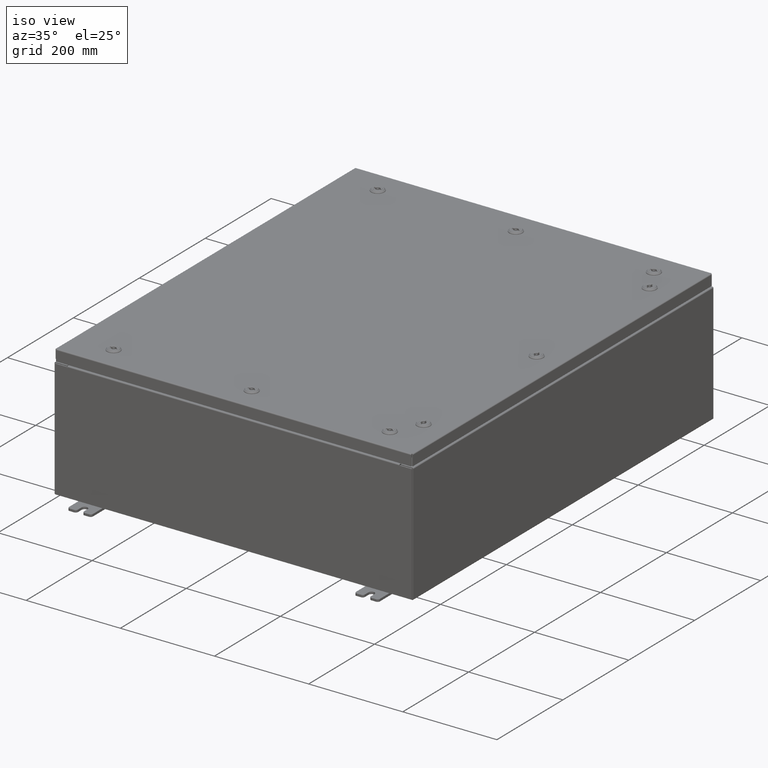
[diagram: clean part render]
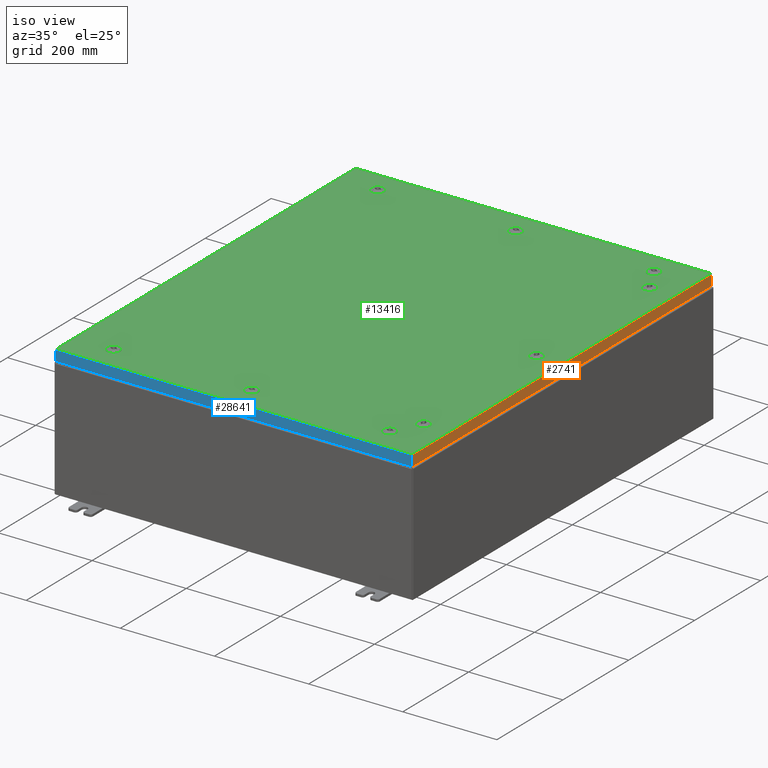
[diagram: same view with three faces highlighted in distinct colors, each labeled with its STEP entity id]
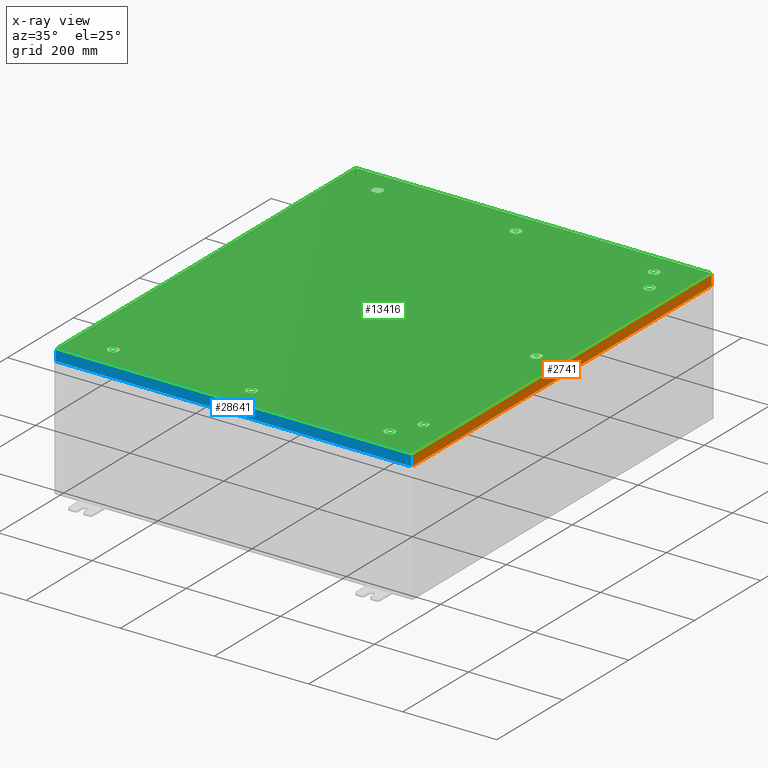
[diagram: x-ray of the same camera — body ghosted, the three highlighted faces saturated]
A machine part, iso view with three faces highlighted in distinct colors.
The next image is the same camera in x-ray (body ghosted, the three faces saturated) — at least one of them is partly hidden behind the body in this view.
Their STEP definitions:

[orange] entity #2741 — the highlighted planar face has unit normal (1, 0, 0).
#215 = CARTESIAN_POINT ( 'NONE',  ( 14.93749999999999800, 0.0000000000000000000, 3.808883627975194400E-014 ) ) ;
#2741 = ADVANCED_FACE ( 'NONE', ( #27331 ), #35432, .T. ) ;
#4195 = CARTESIAN_POINT ( 'NONE',  ( 14.93749999999999800, 17.84865786437626800, -0.08770000000000008300 ) ) ;
#4713 = CARTESIAN_POINT ( 'NONE',  ( 14.93749999999999800, 17.84865786437626800, 1.627253479934829100E-013 ) ) ;
#5765 = CARTESIAN_POINT ( 'NONE',  ( 14.93749999999999800, -17.84865786437627100, -0.08770000000000008300 ) ) ;
#5882 = VECTOR ( 'NONE', #51062, 39.37007874015748100 ) ;
#8203 = VECTOR ( 'NONE', #52548, 39.37007874015748100 ) ;
#13456 = LINE ( 'NONE', #4713, #64300 ) ;
#15451 = ORIENTED_EDGE ( 'NONE', *, *, #40186, .F. ) ;
#15580 = DIRECTION ( 'NONE',  ( 1.000000000000000000, 0.0000000000000000000, 2.532419924601866100E-015 ) ) ;
#17886 = CARTESIAN_POINT ( 'NONE',  ( 14.93749999999999800, 0.0000000000000000000, -0.08770000000000008300 ) ) ;
#18327 = ORIENTED_EDGE ( 'NONE', *, *, #44319, .T. ) ;
#20264 = DIRECTION ( 'NONE',  ( 2.532419924601866100E-015, 0.0000000000000000000, -1.000000000000000000 ) ) ;
#21044 = EDGE_LOOP ( 'NONE', ( #15451, #32847, #18327, #22469 ) ) ;
#21915 = CARTESIAN_POINT ( 'NONE',  ( 14.93749999999999800, -17.84865786437627100, -0.07469999999999980800 ) ) ;
#22469 = ORIENTED_EDGE ( 'NONE', *, *, #51246, .T. ) ;
#25015 = DIRECTION ( 'NONE',  ( -2.532419924601866100E-015, -6.982962677686265900E-015, 1.000000000000000000 ) ) ;
#27331 = FACE_OUTER_BOUND ( 'NONE', #21044, .T. ) ;
#28155 = AXIS2_PLACEMENT_3D ( 'NONE', #215, #15580, #20264 ) ;
#31392 = CARTESIAN_POINT ( 'NONE',  ( 14.93750000000000000, -17.84865786437626400, -0.9376999999999997600 ) ) ;
#32847 = ORIENTED_EDGE ( 'NONE', *, *, #35569, .F. ) ;
#33733 = VERTEX_POINT ( 'NONE', #5765 ) ;
#35304 = LINE ( 'NONE', #21915, #8203 ) ;
#35432 = PLANE ( 'NONE',  #28155 ) ;
#35569 = EDGE_CURVE ( 'NONE', #48425, #45645, #59870, .T. ) ;
#37942 = DIRECTION ( 'NONE',  ( 0.0000000000000000000, -1.000000000000000000, 0.0000000000000000000 ) ) ;
#40186 = EDGE_CURVE ( 'NONE', #45645, #33733, #35304, .T. ) ;
#44319 = EDGE_CURVE ( 'NONE', #48425, #57820, #13456, .T. ) ;
#45645 = VERTEX_POINT ( 'NONE', #31392 ) ;
#48299 = LINE ( 'NONE', #17886, #61643 ) ;
#48425 = VERTEX_POINT ( 'NONE', #52691 ) ;
#51062 = DIRECTION ( 'NONE',  ( 0.0000000000000000000, -1.000000000000000000, 0.0000000000000000000 ) ) ;
#51246 = EDGE_CURVE ( 'NONE', #57820, #33733, #48299, .T. ) ;
#52548 = DIRECTION ( 'NONE',  ( -2.532419924601866100E-015, -6.982962677686265900E-015, 1.000000000000000000 ) ) ;
#52691 = CARTESIAN_POINT ( 'NONE',  ( 14.93750000000000000, 17.84865786437627500, -0.9376999999999997600 ) ) ;
#56084 = CARTESIAN_POINT ( 'NONE',  ( 14.93750000000000000, -17.93750000000000000, -0.9376999999999997600 ) ) ;
#57820 = VERTEX_POINT ( 'NONE', #4195 ) ;
#59870 = LINE ( 'NONE', #56084, #5882 ) ;
#61643 = VECTOR ( 'NONE', #37942, 39.37007874015748100 ) ;
#64300 = VECTOR ( 'NONE', #25015, 39.37007874015748100 ) ;

[blue] entity #28641 — the highlighted planar face has unit normal (-0, 1, -0).
#1325 = CARTESIAN_POINT ( 'NONE',  ( -14.84865786437627300, -17.93750000000000000, -0.08770000000000008300 ) ) ;
#1416 = DIRECTION ( 'NONE',  ( 1.000000000000000000, 3.241995248935437300E-031, -8.117058051628660600E-046 ) ) ;
#6568 = DIRECTION ( 'NONE',  ( 0.0000000000000000000, -2.532419924601866100E-015, -1.000000000000000000 ) ) ;
#8067 = ORIENTED_EDGE ( 'NONE', *, *, #43754, .T. ) ;
#11356 = CARTESIAN_POINT ( 'NONE',  ( 14.84865786437626800, -17.93750000000000400, -0.9376999999999997600 ) ) ;
#15068 = VERTEX_POINT ( 'NONE', #44000 ) ;
#15801 = FACE_OUTER_BOUND ( 'NONE', #27517, .T. ) ;
#16490 = DIRECTION ( 'NONE',  ( -3.241995248935437300E-031, 1.000000000000000000, -2.532419924601866100E-015 ) ) ;
#16726 = DIRECTION ( 'NONE',  ( 0.0000000000000000000, 2.532419924601866100E-015, 1.000000000000000000 ) ) ;
#17542 = VECTOR ( 'NONE', #6568, 39.37007874015748100 ) ;
#18265 = VECTOR ( 'NONE', #1416, 39.37007874015748100 ) ;
#22142 = ORIENTED_EDGE ( 'NONE', *, *, #23784, .F. ) ;
#23779 = DIRECTION ( 'NONE',  ( -1.000000000000000000, 4.379057701015054300E-047, 1.280196549332207300E-016 ) ) ;
#23784 = EDGE_CURVE ( 'NONE', #27856, #32517, #50365, .T. ) ;
#23837 = ORIENTED_EDGE ( 'NONE', *, *, #58838, .F. ) ;
#27517 = EDGE_LOOP ( 'NONE', ( #43438, #8067, #23837, #22142 ) ) ;
#27786 = EDGE_CURVE ( 'NONE', #49315, #27856, #31803, .T. ) ;
#27856 = VERTEX_POINT ( 'NONE', #52373 ) ;
#28641 = ADVANCED_FACE ( 'NONE', ( #15801 ), #37025, .F. ) ;
#31096 = LINE ( 'NONE', #47089, #17542 ) ;
#31742 = CARTESIAN_POINT ( 'NONE',  ( 14.93749999999999800, -17.93750000000000000, -0.08770000000000008300 ) ) ;
#31803 = LINE ( 'NONE', #31742, #18265 ) ;
#32517 = VERTEX_POINT ( 'NONE', #11356 ) ;
#37025 = PLANE ( 'NONE',  #40983 ) ;
#38449 = VECTOR ( 'NONE', #57163, 39.37007874015748100 ) ;
#40983 = AXIS2_PLACEMENT_3D ( 'NONE', #42086, #16490, #16726 ) ;
#42086 = CARTESIAN_POINT ( 'NONE',  ( 5.815328977777940600E-030, -17.93750000000000000, 4.568609605355756000E-014 ) ) ;
#43438 = ORIENTED_EDGE ( 'NONE', *, *, #27786, .F. ) ;
#43754 = EDGE_CURVE ( 'NONE', #49315, #15068, #31096, .T. ) ;
#44000 = CARTESIAN_POINT ( 'NONE',  ( -14.84865786437627300, -17.93750000000000400, -0.9376999999999958700 ) ) ;
#47089 = CARTESIAN_POINT ( 'NONE',  ( -14.84865786437627100, -17.93750000000000000, 4.568609605355756000E-014 ) ) ;
#48536 = VECTOR ( 'NONE', #23779, 39.37007874015748100 ) ;
#49315 = VERTEX_POINT ( 'NONE', #1325 ) ;
#50365 = LINE ( 'NONE', #52121, #38449 ) ;
#52121 = CARTESIAN_POINT ( 'NONE',  ( 14.84865786437626800, -17.93750000000000000, -0.07469999999999980800 ) ) ;
#52373 = CARTESIAN_POINT ( 'NONE',  ( 14.84865786437626900, -17.93750000000000000, -0.08770000000000008300 ) ) ;
#52520 = LINE ( 'NONE', #59210, #48536 ) ;
#57163 = DIRECTION ( 'NONE',  ( -0.0000000000000000000, -2.532419924601866100E-015, -1.000000000000000000 ) ) ;
#58838 = EDGE_CURVE ( 'NONE', #32517, #15068, #52520, .T. ) ;
#59210 = CARTESIAN_POINT ( 'NONE',  ( 14.93749999999999800, -17.93750000000000400, -0.9376999999999997600 ) ) ;

[green] entity #13416 — the highlighted planar face has unit normal (0, 0, -1).
#35 = CARTESIAN_POINT ( 'NONE',  ( 11.36304762473210200, 15.39279999999999900, -2.414586126232981000E-013 ) ) ;
#55 = VERTEX_POINT ( 'NONE', #28773 ) ;
#405 = DIRECTION ( 'NONE',  ( -1.000000000000000000, 0.0000000000000000000, 7.785697190086082800E-029 ) ) ;
#406 = DIRECTION ( 'NONE',  ( 0.0000000000000000000, 1.000000000000000000, 6.982962677686270700E-015 ) ) ;
#419 = CIRCLE ( 'NONE', #63498, 0.4424999999999961700 ) ;
#454 = AXIS2_PLACEMENT_3D ( 'NONE', #13363, #29032, #18114 ) ;
#907 = VERTEX_POINT ( 'NONE', #55407 ) ;
#1040 = DIRECTION ( 'NONE',  ( -1.095739467627838000E-014, -1.000000000000000000, 0.0000000000000000000 ) ) ;
#1047 = DIRECTION ( 'NONE',  ( 1.000000000000000000, 0.0000000000000000000, 0.0000000000000000000 ) ) ;
#1064 = CIRCLE ( 'NONE', #35259, 0.4424999999999961700 ) ;
#1073 = CARTESIAN_POINT ( 'NONE',  ( 13.18280000000000200, -13.69945237526790100, -9.566276464123617700E-014 ) ) ;
#1285 = ORIENTED_EDGE ( 'NONE', *, *, #15735, .F. ) ;
#1449 = AXIS2_PLACEMENT_3D ( 'NONE', #65877, #35565, #5043 ) ;
#1457 = VERTEX_POINT ( 'NONE', #42263 ) ;
#1471 = VECTOR ( 'NONE', #40128, 39.37007874015748100 ) ;
#1474 = CIRCLE ( 'NONE', #31723, 0.4424999999999961700 ) ;
#2004 = CARTESIAN_POINT ( 'NONE',  ( -14.84980000000000200, -17.84980000000000200, -2.048885995248197400E-016 ) ) ;
#2267 = DIRECTION ( 'NONE',  ( 1.000000000000000000, 0.0000000000000000000, 0.0000000000000000000 ) ) ;
#2289 = EDGE_CURVE ( 'NONE', #22250, #52980, #8177, .T. ) ;
#2349 = VERTEX_POINT ( 'NONE', #55680 ) ;
#2432 = CARTESIAN_POINT ( 'NONE',  ( 11.56249999999998800, 15.78779999999999500, -2.428513811157696100E-013 ) ) ;
#2500 = CARTESIAN_POINT ( 'NONE',  ( 12.78780000000000600, -13.50000000000001800, -9.426999614876466400E-014 ) ) ;
#2523 = DIRECTION ( 'NONE',  ( -1.000000000000000000, -0.0000000000000000000, -0.0000000000000000000 ) ) ;
#2601 = VERTEX_POINT ( 'NONE', #14596 ) ;
#2652 = CARTESIAN_POINT ( 'NONE',  ( 0.1994523752679068500, 16.18279999999998300, 0.0000000000000000000 ) ) ;
#2657 = VERTEX_POINT ( 'NONE', #15951 ) ;
#2786 = DIRECTION ( 'NONE',  ( 1.000000000000000000, 1.095739467627836100E-014, 7.785697190085984100E-029 ) ) ;
#2804 = CARTESIAN_POINT ( 'NONE',  ( -11.36304762473210100, -15.39279999999999900, -2.493734682567286900E-013 ) ) ;
#2866 = EDGE_CURVE ( 'NONE', #59104, #45729, #29655, .T. ) ;
#3137 = ORIENTED_EDGE ( 'NONE', *, *, #58634, .F. ) ;
#3201 = VERTEX_POINT ( 'NONE', #27280 ) ;
#4107 = ORIENTED_EDGE ( 'NONE', *, *, #51213, .F. ) ;
#4266 = ORIENTED_EDGE ( 'NONE', *, *, #56080, .T. ) ;
#4312 = VERTEX_POINT ( 'NONE', #36486 ) ;
#4680 = VECTOR ( 'NONE', #7009, 39.37007874015748100 ) ;
#4725 = VERTEX_POINT ( 'NONE', #65489 ) ;
#4784 = CIRCLE ( 'NONE', #454, 0.4424999999999961700 ) ;
#4939 = LINE ( 'NONE', #48456, #55812 ) ;
#4960 = CARTESIAN_POINT ( 'NONE',  ( -14.84980000000000200, -17.84980000000000200, -2.048885995248197400E-016 ) ) ;
#5043 = DIRECTION ( 'NONE',  ( 1.000000000000000000, 0.0000000000000000000, 6.982962677686252500E-015 ) ) ;
#5265 = ORIENTED_EDGE ( 'NONE', *, *, #24201, .T. ) ;
#5470 = CIRCLE ( 'NONE', #26987, 0.4424999999999983400 ) ;
#5538 = CARTESIAN_POINT ( 'NONE',  ( -11.36304762473210100, -15.39279999999999900, -2.493734682567286900E-013 ) ) ;
#5839 = CIRCLE ( 'NONE', #63347, 0.4424999999999961700 ) ;
#5860 = CARTESIAN_POINT ( 'NONE',  ( 0.1994523752678995500, 15.39279999999999400, 0.0000000000000000000 ) ) ;
#5913 = FACE_BOUND ( 'NONE', #17612, .T. ) ;
#6034 = DIRECTION ( 'NONE',  ( -0.0000000000000000000, -6.982962677686266700E-015, 1.000000000000000000 ) ) ;
#6648 = VERTEX_POINT ( 'NONE', #15389 ) ;
#6673 = EDGE_CURVE ( 'NONE', #39837, #9506, #4784, .T. ) ;
#7009 = DIRECTION ( 'NONE',  ( -1.000000000000000000, -0.0000000000000000000, -6.982962677686306200E-015 ) ) ;
#7334 = VECTOR ( 'NONE', #56132, 39.37007874015748100 ) ;
#7350 = VECTOR ( 'NONE', #29199, 39.37007874015748100 ) ;
#7566 = DIRECTION ( 'NONE',  ( -1.000000000000000000, 0.0000000000000000000, 6.982962677686304600E-015 ) ) ;
#7622 = DIRECTION ( 'NONE',  ( 0.0000000000000000000, 1.000000000000000000, 6.982962677686269100E-015 ) ) ;
#7766 = EDGE_CURVE ( 'NONE', #16919, #20508, #27092, .T. ) ;
#7838 = CARTESIAN_POINT ( 'NONE',  ( -11.36304762473210200, 15.39279999999999400, 0.0000000000000000000 ) ) ;
#7903 = ORIENTED_EDGE ( 'NONE', *, *, #60339, .F. ) ;
#8060 = EDGE_CURVE ( 'NONE', #27875, #2349, #54770, .T. ) ;
#8110 = DIRECTION ( 'NONE',  ( 0.0000000000000000000, 0.0000000000000000000, 1.000000000000000000 ) ) ;
#8177 = LINE ( 'NONE', #16301, #21745 ) ;
#8589 = DIRECTION ( 'NONE',  ( -5.478697338139235000E-015, 1.000000000000000000, -0.0000000000000000000 ) ) ;
#8879 = AXIS2_PLACEMENT_3D ( 'NONE', #47340, #16839, #52399 ) ;
#9058 = VECTOR ( 'NONE', #55967, 39.37007874015748100 ) ;
#9213 = DIRECTION ( 'NONE',  ( -0.0000000000000000000, -6.982962677686266700E-015, 1.000000000000000000 ) ) ;
#9273 = CARTESIAN_POINT ( 'NONE',  ( 11.36304762473210200, 15.39279999999999900, -2.414586126232981000E-013 ) ) ;
#9401 = EDGE_CURVE ( 'NONE', #63507, #15293, #16543, .T. ) ;
#9506 = VERTEX_POINT ( 'NONE', #56128 ) ;
#9715 = DIRECTION ( 'NONE',  ( 0.0000000000000000000, -1.000000000000000000, 0.0000000000000000000 ) ) ;
#10060 = LINE ( 'NONE', #27127, #22068 ) ;
#10127 = ORIENTED_EDGE ( 'NONE', *, *, #30904, .F. ) ;
#10382 = VERTEX_POINT ( 'NONE', #52916 ) ;
#10638 = CARTESIAN_POINT ( 'NONE',  ( 11.36304762473209200, -16.18279999999998600, -1.343139614880271000E-014 ) ) ;
#10953 = DIRECTION ( 'NONE',  ( -5.478697338139220100E-015, 1.000000000000000000, -0.0000000000000000000 ) ) ;
#11856 = VECTOR ( 'NONE', #10953, 39.37007874015748100 ) ;
#12182 = CIRCLE ( 'NONE', #8879, 0.4424999999999973400 ) ;
#12239 = CARTESIAN_POINT ( 'NONE',  ( 13.18280000000000200, 13.69945237526790100, 0.0000000000000000000 ) ) ;
#12641 = VERTEX_POINT ( 'NONE', #9273 ) ;
#12784 = CIRCLE ( 'NONE', #50208, 0.4424999999999983400 ) ;
#12933 = VERTEX_POINT ( 'NONE', #62090 ) ;
#13000 = DIRECTION ( 'NONE',  ( 0.0000000000000000000, 0.0000000000000000000, -1.000000000000000000 ) ) ;
#13251 = DIRECTION ( 'NONE',  ( 5.478697338139220100E-015, 1.000000000000000000, 6.982962677686228100E-015 ) ) ;
#13363 = CARTESIAN_POINT ( 'NONE',  ( -11.56249999999998200, -15.78779999999999500, -2.521317385144146900E-013 ) ) ;
#13416 = ADVANCED_FACE ( 'NONE', ( #34618, #46527, #48160, #33053, #19446, #5913, #58370, #44925, #31414, #17879 ), #33346, .F. ) ;
#13574 = CARTESIAN_POINT ( 'NONE',  ( -11.76195237526786700, 16.18279999999998600, 0.0000000000000000000 ) ) ;
#13686 = CARTESIAN_POINT ( 'NONE',  ( 13.18280000000000200, 13.69945237526790100, 0.0000000000000000000 ) ) ;
#13911 = CARTESIAN_POINT ( 'NONE',  ( 13.18280000000000400, 13.30054762473213300, 0.0000000000000000000 ) ) ;
#14157 = CARTESIAN_POINT ( 'NONE',  ( -11.76195237526786900, 15.39279999999999400, 0.0000000000000000000 ) ) ;
#14511 = ORIENTED_EDGE ( 'NONE', *, *, #46634, .F. ) ;
#14538 = CIRCLE ( 'NONE', #28179, 0.4424999999999961700 ) ;
#14544 = CARTESIAN_POINT ( 'NONE',  ( 11.56249999999998200, -15.78779999999999500, -9.280357398645127900E-015 ) ) ;
#14596 = CARTESIAN_POINT ( 'NONE',  ( -0.1994523752678657400, -16.18279999999998600, 0.0000000000000000000 ) ) ;
#14651 = DIRECTION ( 'NONE',  ( -1.000000000000000000, 0.0000000000000000000, 7.785697190086061500E-029 ) ) ;
#14654 = EDGE_CURVE ( 'NONE', #17525, #22250, #60622, .T. ) ;
#14670 = ORIENTED_EDGE ( 'NONE', *, *, #7766, .F. ) ;
#14837 = VERTEX_POINT ( 'NONE', #32250 ) ;
#14977 = CARTESIAN_POINT ( 'NONE',  ( 12.78780000000000600, 1.529834876451990400E-014, 0.0000000000000000000 ) ) ;
#14985 = CARTESIAN_POINT ( 'NONE',  ( 12.00499999999998100, -15.78779999999999500, -6.190396413768972700E-015 ) ) ;
#15272 = VECTOR ( 'NONE', #50771, 39.37007874015748100 ) ;
#15293 = VERTEX_POINT ( 'NONE', #14985 ) ;
#15389 = CARTESIAN_POINT ( 'NONE',  ( 11.36304762473210100, -15.39279999999999900, -7.914855633430593000E-015 ) ) ;
#15404 = EDGE_CURVE ( 'NONE', #6648, #37033, #38447, .T. ) ;
#15460 = CARTESIAN_POINT ( 'NONE',  ( -11.56249999999998800, 15.78779999999999000, 0.0000000000000000000 ) ) ;
#15595 = AXIS2_PLACEMENT_3D ( 'NONE', #14977, #50610, #20139 ) ;
#15735 = EDGE_CURVE ( 'NONE', #2601, #27875, #4939, .T. ) ;
#15751 = CIRCLE ( 'NONE', #43999, 0.4424999999999969000 ) ;
#15951 = CARTESIAN_POINT ( 'NONE',  ( 13.18280000000000200, 0.1994523752679009100, 0.0000000000000000000 ) ) ;
#16081 = DIRECTION ( 'NONE',  ( 1.000000000000000000, -0.0000000000000000000, -0.0000000000000000000 ) ) ;
#16301 = CARTESIAN_POINT ( 'NONE',  ( 13.18280000000000200, -13.69945237526790100, -9.566276464123617700E-014 ) ) ;
#16543 = CIRCLE ( 'NONE', #1449, 0.4424999999999983400 ) ;
#16839 = DIRECTION ( 'NONE',  ( 0.0000000000000000000, 0.0000000000000000000, 1.000000000000000000 ) ) ;
#16919 = VERTEX_POINT ( 'NONE', #13911 ) ;
#17077 = EDGE_CURVE ( 'NONE', #56656, #55, #26416, .T. ) ;
#17250 = CARTESIAN_POINT ( 'NONE',  ( -11.36304762473209400, 16.18279999999998300, 0.0000000000000000000 ) ) ;
#17353 = CARTESIAN_POINT ( 'NONE',  ( 12.78780000000000600, 1.529834876451990400E-014, 0.0000000000000000000 ) ) ;
#17525 = VERTEX_POINT ( 'NONE', #38767 ) ;
#17612 = EDGE_LOOP ( 'NONE', ( #1285, #17931, #22508, #54826, #51822 ) ) ;
#17657 = VERTEX_POINT ( 'NONE', #24741 ) ;
#17711 = EDGE_CURVE ( 'NONE', #60992, #29686, #49393, .T. ) ;
#17760 = CARTESIAN_POINT ( 'NONE',  ( 11.36304762473209200, -16.18279999999998600, -1.343139614880270700E-014 ) ) ;
#17837 = ORIENTED_EDGE ( 'NONE', *, *, #17077, .F. ) ;
#17879 = FACE_OUTER_BOUND ( 'NONE', #18098, .T. ) ;
#17931 = ORIENTED_EDGE ( 'NONE', *, *, #40015, .F. ) ;
#18098 = EDGE_LOOP ( 'NONE', ( #24820, #4266, #34499, #5265 ) ) ;
#18114 = DIRECTION ( 'NONE',  ( 0.0000000000000000000, 1.000000000000000000, 6.982962677686304600E-015 ) ) ;
#18259 = LINE ( 'NONE', #35044, #1471 ) ;
#18264 = LINE ( 'NONE', #37554, #4680 ) ;
#18679 = ORIENTED_EDGE ( 'NONE', *, *, #63875, .F. ) ;
#18941 = CARTESIAN_POINT ( 'NONE',  ( 14.84979999999999700, -17.84979999999999800, -2.048885995248197400E-016 ) ) ;
#18979 = EDGE_CURVE ( 'NONE', #43922, #34035, #60290, .T. ) ;
#19126 = AXIS2_PLACEMENT_3D ( 'NONE', #58548, #13000, #48664 ) ;
#19177 = EDGE_CURVE ( 'NONE', #22414, #39837, #18259, .T. ) ;
#19284 = ORIENTED_EDGE ( 'NONE', *, *, #6673, .F. ) ;
#19412 = CIRCLE ( 'NONE', #60208, 0.4424999999999983400 ) ;
#19446 = FACE_BOUND ( 'NONE', #42773, .T. ) ;
#19696 = DIRECTION ( 'NONE',  ( 1.000000000000000000, 0.0000000000000000000, 6.982962677686252500E-015 ) ) ;
#19802 = CARTESIAN_POINT ( 'NONE',  ( 0.1994523752678995500, -15.39279999999999400, -2.493734682567286900E-013 ) ) ;
#20139 = DIRECTION ( 'NONE',  ( 1.000000000000000000, 0.0000000000000000000, 0.0000000000000000000 ) ) ;
#20220 = ORIENTED_EDGE ( 'NONE', *, *, #20340, .F. ) ;
#20340 = EDGE_CURVE ( 'NONE', #37033, #63507, #42049, .T. ) ;
#20508 = VERTEX_POINT ( 'NONE', #13686 ) ;
#20599 = DIRECTION ( 'NONE',  ( 1.000000000000000000, 0.0000000000000000000, 0.0000000000000000000 ) ) ;
#20651 = CARTESIAN_POINT ( 'NONE',  ( -11.36304762473210200, 15.39279999999999400, 0.0000000000000000000 ) ) ;
#20729 = ORIENTED_EDGE ( 'NONE', *, *, #2866, .F. ) ;
#21231 = CARTESIAN_POINT ( 'NONE',  ( 1.529834876451987200E-014, -15.78779999999999000, -2.521317385144146900E-013 ) ) ;
#21265 = EDGE_CURVE ( 'NONE', #25432, #17525, #60938, .T. ) ;
#21459 = DIRECTION ( 'NONE',  ( 6.982962677686266700E-015, -0.0000000000000000000, 1.000000000000000000 ) ) ;
#21745 = VECTOR ( 'NONE', #13251, 39.37007874015748100 ) ;
#22068 = VECTOR ( 'NONE', #57443, 39.37007874015748100 ) ;
#22250 = VERTEX_POINT ( 'NONE', #1073 ) ;
#22317 = ORIENTED_EDGE ( 'NONE', *, *, #39830, .F. ) ;
#22414 = VERTEX_POINT ( 'NONE', #32281 ) ;
#22508 = ORIENTED_EDGE ( 'NONE', *, *, #17711, .F. ) ;
#22522 = DIRECTION ( 'NONE',  ( 1.000000000000000000, 0.0000000000000000000, 0.0000000000000000000 ) ) ;
#22789 = CARTESIAN_POINT ( 'NONE',  ( 1.529834876451987200E-014, 15.78779999999999000, 0.0000000000000000000 ) ) ;
#23526 = EDGE_CURVE ( 'NONE', #14837, #3201, #32933, .T. ) ;
#24017 = AXIS2_PLACEMENT_3D ( 'NONE', #36546, #6034, #41654 ) ;
#24052 = EDGE_LOOP ( 'NONE', ( #47624, #37909, #59715, #57141 ) ) ;
#24201 = EDGE_CURVE ( 'NONE', #34035, #54795, #25709, .T. ) ;
#24329 = EDGE_CURVE ( 'NONE', #65735, #61990, #47966, .T. ) ;
#24601 = CARTESIAN_POINT ( 'NONE',  ( 12.78780000000000600, 13.50000000000001800, 0.0000000000000000000 ) ) ;
#24602 = EDGE_LOOP ( 'NONE', ( #14670, #18679, #62110, #22317 ) ) ;
#24723 = ORIENTED_EDGE ( 'NONE', *, *, #35784, .F. ) ;
#24741 = CARTESIAN_POINT ( 'NONE',  ( -0.1994523752678657400, 16.18279999999998600, 0.0000000000000000000 ) ) ;
#24820 = ORIENTED_EDGE ( 'NONE', *, *, #30204, .T. ) ;
#25289 = CARTESIAN_POINT ( 'NONE',  ( -0.1994523752678689600, -15.39279999999999400, -2.493734682567286400E-013 ) ) ;
#25432 = VERTEX_POINT ( 'NONE', #43245 ) ;
#25557 = VERTEX_POINT ( 'NONE', #13574 ) ;
#25569 = ORIENTED_EDGE ( 'NONE', *, *, #29605, .F. ) ;
#25641 = CARTESIAN_POINT ( 'NONE',  ( -11.36304762473209400, 16.18279999999998300, 0.0000000000000000000 ) ) ;
#25709 = LINE ( 'NONE', #35134, #37648 ) ;
#25762 = CARTESIAN_POINT ( 'NONE',  ( -11.56249999999998200, -15.78779999999999500, -2.521317385144146900E-013 ) ) ;
#25774 = EDGE_CURVE ( 'NONE', #2657, #28668, #12784, .T. ) ;
#26116 = DIRECTION ( 'NONE',  ( -6.982962677686266700E-015, -6.982962677686266700E-015, 1.000000000000000000 ) ) ;
#26230 = DIRECTION ( 'NONE',  ( -1.095739467627836100E-014, -1.000000000000000000, 0.0000000000000000000 ) ) ;
#26403 = DIRECTION ( 'NONE',  ( 0.0000000000000000000, 1.000000000000000000, 6.982962677686304600E-015 ) ) ;
#26416 = LINE ( 'NONE', #5860, #51809 ) ;
#26445 = EDGE_CURVE ( 'NONE', #10382, #12641, #32739, .T. ) ;
#26501 = CARTESIAN_POINT ( 'NONE',  ( 12.39280000000001400, 13.69945237526790600, 0.0000000000000000000 ) ) ;
#26987 = AXIS2_PLACEMENT_3D ( 'NONE', #14544, #50195, #19696 ) ;
#27053 = CARTESIAN_POINT ( 'NONE',  ( 12.78780000000000600, 13.50000000000001800, 0.0000000000000000000 ) ) ;
#27092 = LINE ( 'NONE', #12239, #11856 ) ;
#27127 = CARTESIAN_POINT ( 'NONE',  ( 0.1994523752679067700, 16.18279999999998300, 0.0000000000000000000 ) ) ;
#27280 = CARTESIAN_POINT ( 'NONE',  ( 13.18280000000000700, -0.1994523752678676000, 0.0000000000000000000 ) ) ;
#27431 = ORIENTED_EDGE ( 'NONE', *, *, #9401, .F. ) ;
#27752 = CARTESIAN_POINT ( 'NONE',  ( 14.84979999999999700, 17.84979999999999800, -2.048885995248197400E-016 ) ) ;
#27875 = VERTEX_POINT ( 'NONE', #32197 ) ;
#27912 = DIRECTION ( 'NONE',  ( 1.000000000000000000, 0.0000000000000000000, 0.0000000000000000000 ) ) ;
#28179 = AXIS2_PLACEMENT_3D ( 'NONE', #21231, #56717, #26403 ) ;
#28668 = VERTEX_POINT ( 'NONE', #42534 ) ;
#28757 = EDGE_LOOP ( 'NONE', ( #31843, #59811, #37496, #44623 ) ) ;
#28773 = CARTESIAN_POINT ( 'NONE',  ( 0.1994523752678995500, 15.39279999999999400, 0.0000000000000000000 ) ) ;
#29032 = DIRECTION ( 'NONE',  ( -0.0000000000000000000, -6.982962677686266700E-015, 1.000000000000000000 ) ) ;
#29047 = DIRECTION ( 'NONE',  ( 1.095739467627838000E-014, -1.000000000000000000, -6.982962677686269100E-015 ) ) ;
#29052 = EDGE_CURVE ( 'NONE', #4725, #10382, #61004, .T. ) ;
#29152 = CARTESIAN_POINT ( 'NONE',  ( 11.56249999999998800, 15.78779999999999500, -2.428513811157696100E-013 ) ) ;
#29199 = DIRECTION ( 'NONE',  ( 0.0000000000000000000, 1.000000000000000000, 0.0000000000000000000 ) ) ;
#29221 = EDGE_CURVE ( 'NONE', #4312, #12933, #32532, .T. ) ;
#29371 = VERTEX_POINT ( 'NONE', #2804 ) ;
#29605 = EDGE_CURVE ( 'NONE', #15293, #53498, #5470, .T. ) ;
#29655 = CIRCLE ( 'NONE', #62050, 0.4424999999999961700 ) ;
#29686 = VERTEX_POINT ( 'NONE', #25289 ) ;
#29719 = DIRECTION ( 'NONE',  ( 1.000000000000000000, 0.0000000000000000000, 0.0000000000000000000 ) ) ;
#29979 = DIRECTION ( 'NONE',  ( -0.0000000000000000000, -6.982962677686266700E-015, 1.000000000000000000 ) ) ;
#30013 = EDGE_LOOP ( 'NONE', ( #30729, #25569, #27431, #20220, #42586 ) ) ;
#30204 = EDGE_CURVE ( 'NONE', #54795, #64200, #33399, .T. ) ;
#30729 = ORIENTED_EDGE ( 'NONE', *, *, #46474, .F. ) ;
#30840 = DIRECTION ( 'NONE',  ( 0.0000000000000000000, 1.000000000000000000, 6.982962677686270700E-015 ) ) ;
#30904 = EDGE_CURVE ( 'NONE', #17657, #56656, #15751, .T. ) ;
#30938 = DIRECTION ( 'NONE',  ( -0.0000000000000000000, -6.982962677686266700E-015, 1.000000000000000000 ) ) ;
#31153 = DIRECTION ( 'NONE',  ( -1.000000000000000000, -1.095739467627832000E-014, 6.982962677686228800E-015 ) ) ;
#31414 = FACE_BOUND ( 'NONE', #31590, .T. ) ;
#31582 = DIRECTION ( 'NONE',  ( 0.0000000000000000000, 0.0000000000000000000, 1.000000000000000000 ) ) ;
#31590 = EDGE_LOOP ( 'NONE', ( #17837, #10127, #60522, #3137, #54028 ) ) ;
#31723 = AXIS2_PLACEMENT_3D ( 'NONE', #38609, #8110, #43726 ) ;
#31843 = ORIENTED_EDGE ( 'NONE', *, *, #21265, .F. ) ;
#32152 = DIRECTION ( 'NONE',  ( 1.000000000000000000, 0.0000000000000000000, 0.0000000000000000000 ) ) ;
#32190 = EDGE_CURVE ( 'NONE', #3201, #2657, #55371, .T. ) ;
#32197 = CARTESIAN_POINT ( 'NONE',  ( 0.1994523752679070700, -16.18279999999998300, -2.548900087721007400E-013 ) ) ;
#32250 = CARTESIAN_POINT ( 'NONE',  ( 12.39280000000001000, -0.1994523752678671000, 0.0000000000000000000 ) ) ;
#32281 = CARTESIAN_POINT ( 'NONE',  ( -11.76195237526786600, -16.18279999999999000, 0.0000000000000000000 ) ) ;
#32532 = LINE ( 'NONE', #26501, #57867 ) ;
#32567 = DIRECTION ( 'NONE',  ( 1.000000000000000000, -0.0000000000000000000, -0.0000000000000000000 ) ) ;
#32739 = CIRCLE ( 'NONE', #51074, 0.4424999999999983400 ) ;
#32856 = DIRECTION ( 'NONE',  ( 0.0000000000000000000, 0.0000000000000000000, 1.000000000000000000 ) ) ;
#32933 = CIRCLE ( 'NONE', #15595, 0.4424999999999983400 ) ;
#33053 = FACE_BOUND ( 'NONE', #30013, .T. ) ;
#33065 = EDGE_CURVE ( 'NONE', #28668, #14837, #58521, .T. ) ;
#33091 = CARTESIAN_POINT ( 'NONE',  ( 14.84979999999999700, 17.84979999999999800, -2.048885995248197400E-016 ) ) ;
#33346 = PLANE ( 'NONE',  #19126 ) ;
#33399 = LINE ( 'NONE', #2004, #60240 ) ;
#33951 = CARTESIAN_POINT ( 'NONE',  ( 12.39280000000001400, -13.69945237526790600, -9.566276464123621500E-014 ) ) ;
#34035 = VERTEX_POINT ( 'NONE', #48702 ) ;
#34276 = DIRECTION ( 'NONE',  ( -1.000000000000000000, 0.0000000000000000000, 6.982962677686270700E-015 ) ) ;
#34499 = ORIENTED_EDGE ( 'NONE', *, *, #18979, .T. ) ;
#34611 = LINE ( 'NONE', #25641, #9058 ) ;
#34618 = FACE_BOUND ( 'NONE', #28757, .T. ) ;
#35044 = CARTESIAN_POINT ( 'NONE',  ( -11.36304762473209200, -16.18279999999998600, -2.548900087721007400E-013 ) ) ;
#35134 = CARTESIAN_POINT ( 'NONE',  ( -14.84980000000000200, 17.84979999999999800, -2.048885995248197400E-016 ) ) ;
#35259 = AXIS2_PLACEMENT_3D ( 'NONE', #2432, #38097, #7566 ) ;
#35302 = CIRCLE ( 'NONE', #45715, 0.4424999999999983400 ) ;
#35549 = EDGE_CURVE ( 'NONE', #1457, #22414, #19412, .T. ) ;
#35565 = DIRECTION ( 'NONE',  ( -6.982962677686266700E-015, -6.982962677686266700E-015, 1.000000000000000000 ) ) ;
#35784 = EDGE_CURVE ( 'NONE', #45729, #4725, #1064, .T. ) ;
#36039 = LINE ( 'NONE', #18941, #7350 ) ;
#36179 = ORIENTED_EDGE ( 'NONE', *, *, #24329, .F. ) ;
#36486 = CARTESIAN_POINT ( 'NONE',  ( 12.39280000000001400, 13.69945237526790600, 0.0000000000000000000 ) ) ;
#36539 = CARTESIAN_POINT ( 'NONE',  ( 11.76195237526786700, -15.39279999999999900, 0.0000000000000000000 ) ) ;
#36546 = CARTESIAN_POINT ( 'NONE',  ( 1.529834876451987200E-014, -15.78779999999999000, -2.521317385144146900E-013 ) ) ;
#37033 = VERTEX_POINT ( 'NONE', #17760 ) ;
#37496 = ORIENTED_EDGE ( 'NONE', *, *, #2289, .F. ) ;
#37554 = CARTESIAN_POINT ( 'NONE',  ( 11.36304762473210100, -15.39279999999999900, -7.914855633430593000E-015 ) ) ;
#37648 = VECTOR ( 'NONE', #9715, 39.37007874015748100 ) ;
#37890 = ORIENTED_EDGE ( 'NONE', *, *, #35549, .F. ) ;
#37909 = ORIENTED_EDGE ( 'NONE', *, *, #23526, .F. ) ;
#37976 = CARTESIAN_POINT ( 'NONE',  ( -0.1994523752678689600, 15.39279999999999400, 0.0000000000000000000 ) ) ;
#38097 = DIRECTION ( 'NONE',  ( 6.982962677686266700E-015, -0.0000000000000000000, 1.000000000000000000 ) ) ;
#38158 = DIRECTION ( 'NONE',  ( -0.0000000000000000000, -6.982962677686266700E-015, 1.000000000000000000 ) ) ;
#38447 = CIRCLE ( 'NONE', #57018, 0.4424999999999961700 ) ;
#38609 = CARTESIAN_POINT ( 'NONE',  ( -11.56249999999998800, 15.78779999999999000, 0.0000000000000000000 ) ) ;
#38767 = CARTESIAN_POINT ( 'NONE',  ( 12.39280000000001400, -13.69945237526790600, -9.566276464123621500E-014 ) ) ;
#38800 = EDGE_CURVE ( 'NONE', #43851, #25557, #34611, .T. ) ;
#39210 = AXIS2_PLACEMENT_3D ( 'NONE', #2500, #38158, #7622 ) ;
#39502 = EDGE_CURVE ( 'NONE', #55, #49226, #12182, .T. ) ;
#39696 = CARTESIAN_POINT ( 'NONE',  ( -11.36304762473209200, -16.18279999999998600, -2.548900087721007400E-013 ) ) ;
#39715 = CARTESIAN_POINT ( 'NONE',  ( -11.56249999999998200, -15.78779999999999500, -2.521317385144146900E-013 ) ) ;
#39830 = EDGE_CURVE ( 'NONE', #20508, #4312, #5839, .T. ) ;
#39837 = VERTEX_POINT ( 'NONE', #39696 ) ;
#40015 = EDGE_CURVE ( 'NONE', #29686, #2601, #14538, .T. ) ;
#40128 = DIRECTION ( 'NONE',  ( 1.000000000000000000, 1.095739467627832000E-014, 7.785697190085955000E-029 ) ) ;
#41310 = EDGE_CURVE ( 'NONE', #12641, #59104, #55801, .T. ) ;
#41641 = DIRECTION ( 'NONE',  ( -1.000000000000000000, 0.0000000000000000000, 6.982962677686304600E-015 ) ) ;
#41654 = DIRECTION ( 'NONE',  ( 0.0000000000000000000, 1.000000000000000000, 6.982962677686270700E-015 ) ) ;
#41702 = CARTESIAN_POINT ( 'NONE',  ( 11.56249999999998800, 15.78779999999999500, -2.428513811157696100E-013 ) ) ;
#42049 = LINE ( 'NONE', #10638, #65776 ) ;
#42263 = CARTESIAN_POINT ( 'NONE',  ( -11.76195237526786700, -15.39279999999999900, -2.493734682567286400E-013 ) ) ;
#42534 = CARTESIAN_POINT ( 'NONE',  ( 12.39280000000001400, 0.1994523752679062100, 0.0000000000000000000 ) ) ;
#42578 = EDGE_CURVE ( 'NONE', #2349, #60992, #64427, .T. ) ;
#42586 = ORIENTED_EDGE ( 'NONE', *, *, #15404, .F. ) ;
#42773 = EDGE_LOOP ( 'NONE', ( #55398, #37890, #54279, #62584, #19284 ) ) ;
#43245 = CARTESIAN_POINT ( 'NONE',  ( 12.39280000000001000, -13.30054762473213400, 0.0000000000000000000 ) ) ;
#43556 = VECTOR ( 'NONE', #8589, 39.37007874015748100 ) ;
#43726 = DIRECTION ( 'NONE',  ( 1.000000000000000000, 0.0000000000000000000, 0.0000000000000000000 ) ) ;
#43851 = VERTEX_POINT ( 'NONE', #17250 ) ;
#43922 = VERTEX_POINT ( 'NONE', #27752 ) ;
#43999 = AXIS2_PLACEMENT_3D ( 'NONE', #61891, #31582, #1047 ) ;
#44216 = CARTESIAN_POINT ( 'NONE',  ( 13.18280000000000200, 0.1994523752679009100, 0.0000000000000000000 ) ) ;
#44623 = ORIENTED_EDGE ( 'NONE', *, *, #14654, .F. ) ;
#44852 = DIRECTION ( 'NONE',  ( 0.0000000000000000000, 1.000000000000000000, 6.982962677686304600E-015 ) ) ;
#44925 = FACE_BOUND ( 'NONE', #60310, .T. ) ;
#45715 = AXIS2_PLACEMENT_3D ( 'NONE', #27053, #62450, #32152 ) ;
#45729 = VERTEX_POINT ( 'NONE', #57052 ) ;
#46422 = AXIS2_PLACEMENT_3D ( 'NONE', #60288, #29979, #65389 ) ;
#46435 = CARTESIAN_POINT ( 'NONE',  ( 12.39280000000001400, 0.1994523752679053800, 0.0000000000000000000 ) ) ;
#46474 = EDGE_CURVE ( 'NONE', #53498, #6648, #18264, .T. ) ;
#46527 = FACE_BOUND ( 'NONE', #24602, .T. ) ;
#46634 = EDGE_CURVE ( 'NONE', #25557, #65735, #1474, .T. ) ;
#46914 = VECTOR ( 'NONE', #2523, 39.37007874015748100 ) ;
#47340 = CARTESIAN_POINT ( 'NONE',  ( 1.529834876451987200E-014, 15.78779999999999000, 0.0000000000000000000 ) ) ;
#47363 = CARTESIAN_POINT ( 'NONE',  ( 13.18280000000000400, -13.30054762473213300, -9.287722765629316300E-014 ) ) ;
#47569 = VECTOR ( 'NONE', #29047, 39.37007874015748100 ) ;
#47624 = ORIENTED_EDGE ( 'NONE', *, *, #32190, .F. ) ;
#47801 = ORIENTED_EDGE ( 'NONE', *, *, #38800, .F. ) ;
#47966 = LINE ( 'NONE', #20651, #7334 ) ;
#48023 = ORIENTED_EDGE ( 'NONE', *, *, #41310, .F. ) ;
#48160 = FACE_BOUND ( 'NONE', #24052, .T. ) ;
#48456 = CARTESIAN_POINT ( 'NONE',  ( 0.1994523752679067700, -16.18279999999998300, -2.548900087721007400E-013 ) ) ;
#48664 = DIRECTION ( 'NONE',  ( -1.000000000000000000, 0.0000000000000000000, -0.0000000000000000000 ) ) ;
#48702 = CARTESIAN_POINT ( 'NONE',  ( -14.84980000000000200, 17.84979999999999800, -2.048885995248197400E-016 ) ) ;
#49211 = VECTOR ( 'NONE', #31153, 39.37007874015748100 ) ;
#49226 = VERTEX_POINT ( 'NONE', #54951 ) ;
#49373 = EDGE_LOOP ( 'NONE', ( #51957, #24723, #20729, #48023, #55201 ) ) ;
#49393 = LINE ( 'NONE', #19802, #61198 ) ;
#50195 = DIRECTION ( 'NONE',  ( -6.982962677686266700E-015, -6.982962677686266700E-015, 1.000000000000000000 ) ) ;
#50208 = AXIS2_PLACEMENT_3D ( 'NONE', #17353, #52908, #22522 ) ;
#50610 = DIRECTION ( 'NONE',  ( 0.0000000000000000000, 0.0000000000000000000, 1.000000000000000000 ) ) ;
#50771 = DIRECTION ( 'NONE',  ( 1.000000000000000000, 0.0000000000000000000, -6.982962677686265900E-015 ) ) ;
#51042 = CARTESIAN_POINT ( 'NONE',  ( 14.84979999999999700, -17.84979999999999800, -2.048885995248197400E-016 ) ) ;
#51065 = DIRECTION ( 'NONE',  ( 0.0000000000000000000, 0.0000000000000000000, 1.000000000000000000 ) ) ;
#51074 = AXIS2_PLACEMENT_3D ( 'NONE', #29152, #64559, #34276 ) ;
#51192 = AXIS2_PLACEMENT_3D ( 'NONE', #61262, #30938, #406 ) ;
#51213 = EDGE_CURVE ( 'NONE', #61990, #907, #51446, .T. ) ;
#51446 = CIRCLE ( 'NONE', #60712, 0.4424999999999983400 ) ;
#51809 = VECTOR ( 'NONE', #16081, 39.37007874015748100 ) ;
#51822 = ORIENTED_EDGE ( 'NONE', *, *, #8060, .F. ) ;
#51957 = ORIENTED_EDGE ( 'NONE', *, *, #29052, .F. ) ;
#52162 = EDGE_CURVE ( 'NONE', #9506, #29371, #419, .T. ) ;
#52397 = LINE ( 'NONE', #5538, #64208 ) ;
#52399 = DIRECTION ( 'NONE',  ( 1.000000000000000000, 0.0000000000000000000, 0.0000000000000000000 ) ) ;
#52908 = DIRECTION ( 'NONE',  ( 0.0000000000000000000, 0.0000000000000000000, 1.000000000000000000 ) ) ;
#52916 = CARTESIAN_POINT ( 'NONE',  ( 11.36304762473209400, 16.18279999999998600, -2.414586126232980000E-013 ) ) ;
#52980 = VERTEX_POINT ( 'NONE', #47363 ) ;
#53498 = VERTEX_POINT ( 'NONE', #36539 ) ;
#53741 = VERTEX_POINT ( 'NONE', #2652 ) ;
#54028 = ORIENTED_EDGE ( 'NONE', *, *, #39502, .F. ) ;
#54279 = ORIENTED_EDGE ( 'NONE', *, *, #60931, .F. ) ;
#54770 = CIRCLE ( 'NONE', #24017, 0.4424999999999983400 ) ;
#54795 = VERTEX_POINT ( 'NONE', #4960 ) ;
#54826 = ORIENTED_EDGE ( 'NONE', *, *, #42578, .F. ) ;
#54951 = CARTESIAN_POINT ( 'NONE',  ( 0.4425000000000126100, 15.78779999999999000, 0.0000000000000000000 ) ) ;
#55201 = ORIENTED_EDGE ( 'NONE', *, *, #26445, .F. ) ;
#55371 = LINE ( 'NONE', #44216, #43556 ) ;
#55398 = ORIENTED_EDGE ( 'NONE', *, *, #19177, .F. ) ;
#55407 = CARTESIAN_POINT ( 'NONE',  ( -11.11999999999998900, 15.78779999999999000, 0.0000000000000000000 ) ) ;
#55680 = CARTESIAN_POINT ( 'NONE',  ( 0.4425000000000126100, -15.78779999999999000, -2.521317385144146900E-013 ) ) ;
#55801 = LINE ( 'NONE', #35, #15272 ) ;
#55812 = VECTOR ( 'NONE', #2786, 39.37007874015748100 ) ;
#55967 = DIRECTION ( 'NONE',  ( -1.000000000000000000, 1.095739467627832000E-014, 0.0000000000000000000 ) ) ;
#56080 = EDGE_CURVE ( 'NONE', #64200, #43922, #36039, .T. ) ;
#56128 = CARTESIAN_POINT ( 'NONE',  ( -11.11999999999998700, -15.78779999999999500, -2.521317385144146900E-013 ) ) ;
#56132 = DIRECTION ( 'NONE',  ( 1.000000000000000000, -0.0000000000000000000, -0.0000000000000000000 ) ) ;
#56401 = DIRECTION ( 'NONE',  ( 1.000000000000000000, -1.095739467627832000E-014, 6.982962677686152300E-015 ) ) ;
#56442 = CARTESIAN_POINT ( 'NONE',  ( 11.56249999999998200, -15.78779999999999500, -9.280357398645127900E-015 ) ) ;
#56656 = VERTEX_POINT ( 'NONE', #37976 ) ;
#56717 = DIRECTION ( 'NONE',  ( -0.0000000000000000000, -6.982962677686266700E-015, 1.000000000000000000 ) ) ;
#56910 = VECTOR ( 'NONE', #26230, 39.37007874015748100 ) ;
#57018 = AXIS2_PLACEMENT_3D ( 'NONE', #56442, #26116, #61506 ) ;
#57052 = CARTESIAN_POINT ( 'NONE',  ( 12.00499999999998300, 15.78779999999999500, -2.459413421006457100E-013 ) ) ;
#57141 = ORIENTED_EDGE ( 'NONE', *, *, #25774, .F. ) ;
#57234 = CIRCLE ( 'NONE', #61180, 0.4424999999999973400 ) ;
#57443 = DIRECTION ( 'NONE',  ( -1.000000000000000000, 1.095739467627836100E-014, 0.0000000000000000000 ) ) ;
#57867 = VECTOR ( 'NONE', #1040, 39.37007874015748100 ) ;
#58015 = CIRCLE ( 'NONE', #46422, 0.4424999999999983400 ) ;
#58249 = DIRECTION ( 'NONE',  ( 0.0000000000000000000, 0.0000000000000000000, 1.000000000000000000 ) ) ;
#58313 = AXIS2_PLACEMENT_3D ( 'NONE', #15460, #51065, #20599 ) ;
#58370 = FACE_BOUND ( 'NONE', #49373, .T. ) ;
#58521 = LINE ( 'NONE', #46435, #56910 ) ;
#58548 = CARTESIAN_POINT ( 'NONE',  ( 0.0000000000000000000, 0.0000000000000000000, 0.0000000000000000000 ) ) ;
#58634 = EDGE_CURVE ( 'NONE', #49226, #53741, #57234, .T. ) ;
#59064 = EDGE_CURVE ( 'NONE', #52980, #25432, #58015, .T. ) ;
#59104 = VERTEX_POINT ( 'NONE', #65614 ) ;
#59715 = ORIENTED_EDGE ( 'NONE', *, *, #33065, .F. ) ;
#59811 = ORIENTED_EDGE ( 'NONE', *, *, #59064, .F. ) ;
#60018 = CARTESIAN_POINT ( 'NONE',  ( 11.76195237526786600, -16.18279999999999000, -1.064585916385969600E-014 ) ) ;
#60020 = DIRECTION ( 'NONE',  ( 0.0000000000000000000, 0.0000000000000000000, 1.000000000000000000 ) ) ;
#60208 = AXIS2_PLACEMENT_3D ( 'NONE', #25762, #61161, #30840 ) ;
#60240 = VECTOR ( 'NONE', #32567, 39.37007874015748100 ) ;
#60288 = CARTESIAN_POINT ( 'NONE',  ( 12.78780000000000600, -13.50000000000001800, -9.426999614876466400E-014 ) ) ;
#60290 = LINE ( 'NONE', #33091, #46914 ) ;
#60310 = EDGE_LOOP ( 'NONE', ( #36179, #14511, #47801, #7903, #4107 ) ) ;
#60339 = EDGE_CURVE ( 'NONE', #907, #43851, #65023, .T. ) ;
#60522 = ORIENTED_EDGE ( 'NONE', *, *, #63127, .F. ) ;
#60622 = CIRCLE ( 'NONE', #39210, 0.4424999999999961700 ) ;
#60712 = AXIS2_PLACEMENT_3D ( 'NONE', #63125, #32856, #2267 ) ;
#60931 = EDGE_CURVE ( 'NONE', #29371, #1457, #52397, .T. ) ;
#60938 = LINE ( 'NONE', #33951, #47569 ) ;
#60992 = VERTEX_POINT ( 'NONE', #61680 ) ;
#61004 = LINE ( 'NONE', #61450, #49211 ) ;
#61161 = DIRECTION ( 'NONE',  ( -0.0000000000000000000, -6.982962677686266700E-015, 1.000000000000000000 ) ) ;
#61180 = AXIS2_PLACEMENT_3D ( 'NONE', #22789, #58249, #27912 ) ;
#61198 = VECTOR ( 'NONE', #14651, 39.37007874015748100 ) ;
#61262 = CARTESIAN_POINT ( 'NONE',  ( 1.529834876451987200E-014, -15.78779999999999000, -2.521317385144146900E-013 ) ) ;
#61450 = CARTESIAN_POINT ( 'NONE',  ( 11.36304762473209400, 16.18279999999998600, -2.414586126232980000E-013 ) ) ;
#61506 = DIRECTION ( 'NONE',  ( 1.000000000000000000, 0.0000000000000000000, 6.982962677686277800E-015 ) ) ;
#61680 = CARTESIAN_POINT ( 'NONE',  ( 0.1994523752678995500, -15.39279999999999400, -2.493734682567286900E-013 ) ) ;
#61891 = CARTESIAN_POINT ( 'NONE',  ( 1.529834876451987200E-014, 15.78779999999999000, 0.0000000000000000000 ) ) ;
#61990 = VERTEX_POINT ( 'NONE', #7838 ) ;
#62050 = AXIS2_PLACEMENT_3D ( 'NONE', #41702, #21459, #41641 ) ;
#62090 = CARTESIAN_POINT ( 'NONE',  ( 12.39280000000001000, 13.30054762473213400, 0.0000000000000000000 ) ) ;
#62110 = ORIENTED_EDGE ( 'NONE', *, *, #29221, .F. ) ;
#62450 = DIRECTION ( 'NONE',  ( 0.0000000000000000000, 0.0000000000000000000, 1.000000000000000000 ) ) ;
#62584 = ORIENTED_EDGE ( 'NONE', *, *, #52162, .F. ) ;
#63125 = CARTESIAN_POINT ( 'NONE',  ( -11.56249999999998800, 15.78779999999999000, 0.0000000000000000000 ) ) ;
#63127 = EDGE_CURVE ( 'NONE', #53741, #17657, #10060, .T. ) ;
#63347 = AXIS2_PLACEMENT_3D ( 'NONE', #24601, #60020, #29719 ) ;
#63498 = AXIS2_PLACEMENT_3D ( 'NONE', #39715, #9213, #44852 ) ;
#63507 = VERTEX_POINT ( 'NONE', #60018 ) ;
#63875 = EDGE_CURVE ( 'NONE', #12933, #16919, #35302, .T. ) ;
#64200 = VERTEX_POINT ( 'NONE', #51042 ) ;
#64208 = VECTOR ( 'NONE', #405, 39.37007874015748100 ) ;
#64427 = CIRCLE ( 'NONE', #51192, 0.4424999999999983400 ) ;
#64559 = DIRECTION ( 'NONE',  ( 6.982962677686266700E-015, -0.0000000000000000000, 1.000000000000000000 ) ) ;
#65023 = CIRCLE ( 'NONE', #58313, 0.4424999999999983400 ) ;
#65389 = DIRECTION ( 'NONE',  ( 0.0000000000000000000, 1.000000000000000000, 6.982962677686270700E-015 ) ) ;
#65489 = CARTESIAN_POINT ( 'NONE',  ( 11.76195237526786700, 16.18279999999999000, 0.0000000000000000000 ) ) ;
#65614 = CARTESIAN_POINT ( 'NONE',  ( 11.76195237526786900, 15.39279999999999900, -2.442441496082410700E-013 ) ) ;
#65735 = VERTEX_POINT ( 'NONE', #14157 ) ;
#65776 = VECTOR ( 'NONE', #56401, 39.37007874015748100 ) ;
#65877 = CARTESIAN_POINT ( 'NONE',  ( 11.56249999999998200, -15.78779999999999500, -9.280357398645127900E-015 ) ) ;